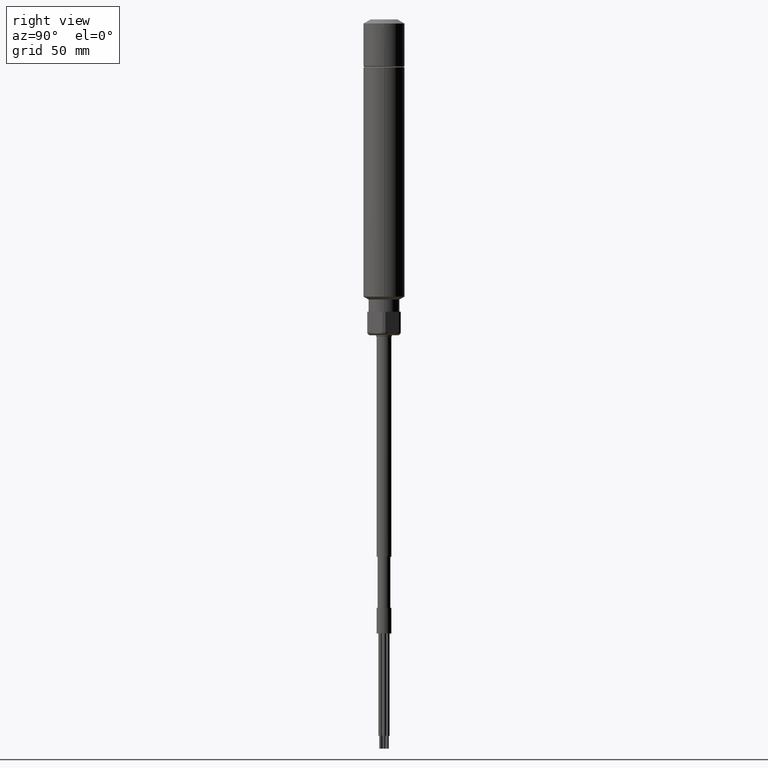
[diagram: clean part render]
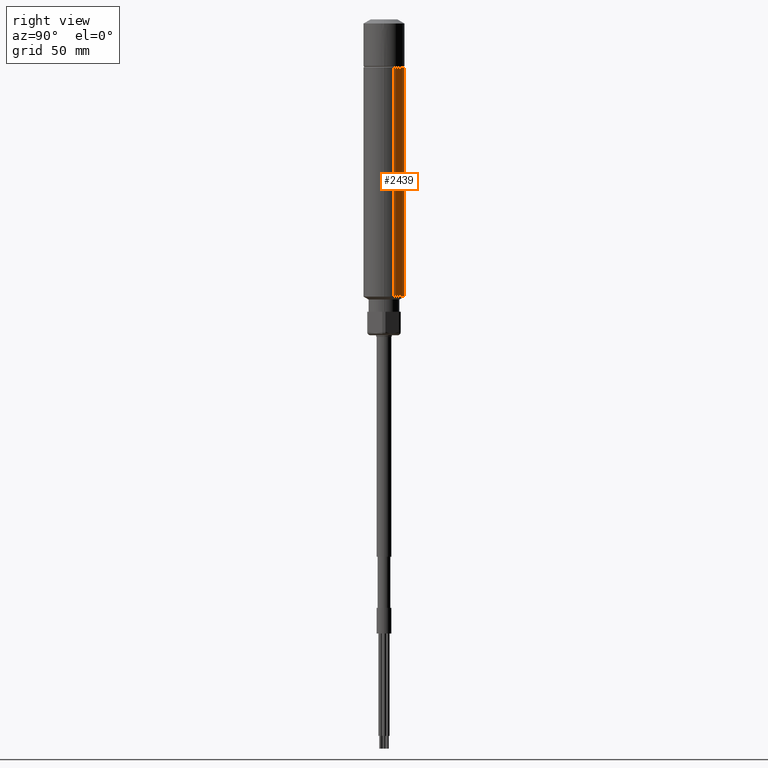
[diagram: same view with one face highlighted and labeled with its STEP entity id]
A machine part, right view. The second image highlights one B-rep face of the part: STEP entity #2439.
In plain terms, the highlighted toroidal blend (fillet) surface has major radius 5.88 mm and minor (blend) radius 1.27 mm.
Its self-contained STEP definition (entity closure, byte-faithful):
#147 = VERTEX_POINT ( 'NONE', #3691 ) ;
#382 = B_SPLINE_CURVE_WITH_KNOTS ( 'NONE', 3,
 ( #5811, #6278, #3766, #6313, #5871, #4282, #5289, #1739, #1337, #1864 ),
 .UNSPECIFIED., .F., .F.,
 ( 4, 2, 2, 2, 4 ),
 ( 1.731577141093539446E-15, 0.0005025563613368635649, 0.001005112722671995442, 0.001507669084007127536, 0.002010225445342259630 ),
 .UNSPECIFIED. ) ;
#521 = CARTESIAN_POINT ( 'NONE',  ( -0.1600550394953926814, -0.2236756729376435937, -3.987943926341463996 ) ) ;
#541 = EDGE_CURVE ( 'NONE', #4654, #2931, #382, .T. ) ;
#565 = CIRCLE ( 'NONE', #6484, 0.2314960629921259949 ) ;
#691 = CARTESIAN_POINT ( 'NONE',  ( 7.615506737251261028E-17, -4.310814825215157128E-16, -3.962500000000000355 ) ) ;
#1014 = CARTESIAN_POINT ( 'NONE',  ( -0.1319236646351841513, -0.1979847725210223952, -4.012500000000000178 ) ) ;
#1227 = ORIENTED_EDGE ( 'NONE', *, *, #3263, .F. ) ;
#1337 = CARTESIAN_POINT ( 'NONE',  ( -0.1091908578226770538, -0.2113745017946337124, -4.012500000000000178 ) ) ;
#1361 = ORIENTED_EDGE ( 'NONE', *, *, #3764, .T. ) ;
#1364 = EDGE_LOOP ( 'NONE', ( #1361, #1227, #2241, #4651 ) ) ;
#1556 = CIRCLE ( 'NONE', #6098, 0.2814960629921259838 ) ;
#1607 = TOROIDAL_SURFACE ( 'NONE', #2448, 0.2314960629921259949, 0.05000000000000000278 ) ;
#1739 = CARTESIAN_POINT ( 'NONE',  ( -0.1107989026591610499, -0.2179206845634032164, -4.011217456231907619 ) ) ;
#1830 = CARTESIAN_POINT ( 'NONE',  ( -0.1075852898923165407, -0.2049776392186248297, -4.012500000000000178 ) ) ;
#1864 = CARTESIAN_POINT ( 'NONE',  ( -0.1075852898923165407, -0.2049776392186248297, -4.012500000000000178 ) ) ;
#1876 = CARTESIAN_POINT ( 'NONE',  ( -0.1639523217003208966, -0.2271724030544926554, -3.975761202590437193 ) ) ;
#2241 = ORIENTED_EDGE ( 'NONE', *, *, #541, .F. ) ;
#2319 = CARTESIAN_POINT ( 'NONE',  ( 7.615506737251261028E-17, -4.310814825215157128E-16, -4.012500000000000178 ) ) ;
#2439 = ADVANCED_FACE ( 'NONE', ( #3773 ), #1607, .T. ) ;
#2448 = AXIS2_PLACEMENT_3D ( 'NONE', #691, #4825, #5268 ) ;
#2542 = CARTESIAN_POINT ( 'NONE',  ( -0.1458980006870169155, -0.2108575001628530121, -4.006329296878910817 ) ) ;
#2804 = B_SPLINE_CURVE_WITH_KNOTS ( 'NONE', 3,
 ( #2880, #4889, #1876, #521, #5062, #4061, #2542, #3038, #1014, #5562 ),
 .UNSPECIFIED., .F., .F.,
 ( 4, 2, 2, 2, 4 ),
 ( 0.000000000000000000, 0.0005025563613354727503, 0.001005112722670945501, 0.001507669084006418251, 0.002010225445341891001 ),
 .UNSPECIFIED. ) ;
#2880 = CARTESIAN_POINT ( 'NONE',  ( -0.1649751620877582536, -0.2280860131051118123, -3.962500000000000355 ) ) ;
#2931 = VERTEX_POINT ( 'NONE', #1830 ) ;
#3038 = CARTESIAN_POINT ( 'NONE',  ( -0.1368692150630232696, -0.2025651489252129900, -4.011217456231905842 ) ) ;
#3067 = CARTESIAN_POINT ( 'NONE',  ( -0.1649751620877582536, -0.2280860131051118123, -3.962500000000000355 ) ) ;
#3263 = EDGE_CURVE ( 'NONE', #2931, #147, #565, .T. ) ;
#3265 = DIRECTION ( 'NONE',  ( 1.000000000000000000, 0.000000000000000000, 0.000000000000000000 ) ) ;
#3393 = DIRECTION ( 'NONE',  ( -0.000000000000000000, -0.000000000000000000, -1.000000000000000000 ) ) ;
#3531 = CARTESIAN_POINT ( 'NONE',  ( -0.1194917057690952772, -0.2548759810818964633, -3.962500000000000355 ) ) ;
#3691 = CARTESIAN_POINT ( 'NONE',  ( -0.1271075072952700946, -0.1934789620864176829, -4.012500000000000178 ) ) ;
#3764 = EDGE_CURVE ( 'NONE', #4819, #147, #2804, .T. ) ;
#3766 = CARTESIAN_POINT ( 'NONE',  ( -0.1191886074132541135, -0.2535384396168728904, -3.975761202590490928 ) ) ;
#3773 = FACE_OUTER_BOUND ( 'NONE', #1364, .T. ) ;
#4061 = CARTESIAN_POINT ( 'NONE',  ( -0.1501260698541099226, -0.2147050378978595797, -4.002662852070121069 ) ) ;
#4282 = CARTESIAN_POINT ( 'NONE',  ( -0.1149885907341611918, -0.2354011770351249477, -4.002662852070137056 ) ) ;
#4333 = DIRECTION ( 'NONE',  ( 1.000000000000000000, 0.000000000000000000, 0.000000000000000000 ) ) ;
#4651 = ORIENTED_EDGE ( 'NONE', *, *, #5938, .F. ) ;
#4654 = VERTEX_POINT ( 'NONE', #3531 ) ;
#4819 = VERTEX_POINT ( 'NONE', #3067 ) ;
#4825 = DIRECTION ( 'NONE',  ( 0.000000000000000000, 0.000000000000000000, 1.000000000000000000 ) ) ;
#4889 = CARTESIAN_POINT ( 'NONE',  ( -0.1649751620877582536, -0.2280860131051114792, -3.969191048972715130 ) ) ;
#5062 = CARTESIAN_POINT ( 'NONE',  ( -0.1571758027620939746, -0.2210874754965495848, -3.993503309405307178 ) ) ;
#5268 = DIRECTION ( 'NONE',  ( 1.000000000000000000, 0.000000000000000000, 0.000000000000000000 ) ) ;
#5289 = CARTESIAN_POINT ( 'NONE',  ( -0.1136736003372418591, -0.2298378223133761000, -4.006329296878922364 ) ) ;
#5381 = DIRECTION ( 'NONE',  ( 0.000000000000000000, 0.000000000000000000, 1.000000000000000000 ) ) ;
#5562 = CARTESIAN_POINT ( 'NONE',  ( -0.1271075072952700946, -0.1934789620864176829, -4.012500000000000178 ) ) ;
#5749 = CARTESIAN_POINT ( 'NONE',  ( 7.615506737251261028E-17, -4.310814825215157128E-16, -3.962500000000000355 ) ) ;
#5811 = CARTESIAN_POINT ( 'NONE',  ( -0.1194917057690952772, -0.2548759810818964633, -3.962500000000000355 ) ) ;
#5871 = CARTESIAN_POINT ( 'NONE',  ( -0.1171524632860597021, -0.2446614091787686351, -3.993503309405338264 ) ) ;
#5938 = EDGE_CURVE ( 'NONE', #4819, #4654, #1556, .T. ) ;
#6098 = AXIS2_PLACEMENT_3D ( 'NONE', #5749, #5381, #3265 ) ;
#6278 = CARTESIAN_POINT ( 'NONE',  ( -0.1194917057690917384, -0.2548759810814838489, -3.969191048972710689 ) ) ;
#6313 = CARTESIAN_POINT ( 'NONE',  ( -0.1180200440468677919, -0.2484344813731420298, -3.987943926341503076 ) ) ;
#6484 = AXIS2_PLACEMENT_3D ( 'NONE', #2319, #3393, #4333 ) ;